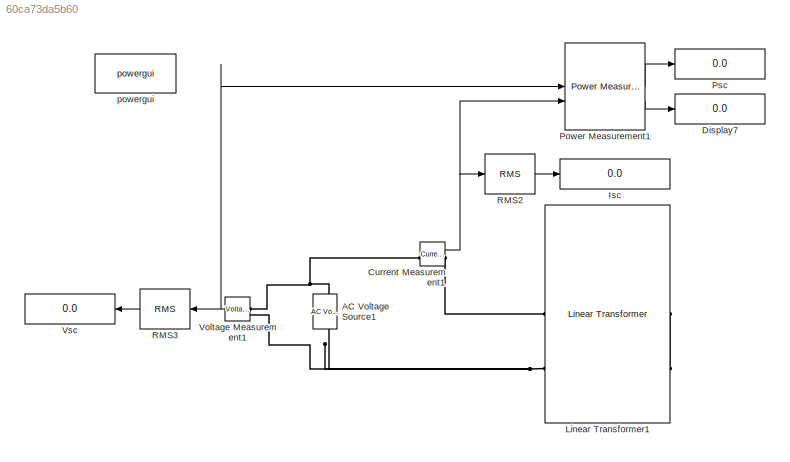
MODEL slx_60ca73da5b60
KIND model
CONFIG AbsTol = auto
CONFIG EnableMultiTasking = off
CONFIG FixedStep = auto
CONFIG MaxStep = auto
CONFIG MinStep = auto
CONFIG RelTol = 1e-3
CONFIG SampleTimeConstraint = Unconstrained
CONFIG SolverName = VariableStepAuto
CONFIG StartTime = 0.0
CONFIG StopTime = 1
BLOCK [Reference] AC Voltage Source1  REF=spsACVoltageSourceLib/AC Voltage Source
  LibrarySourceBlock = sps_lib/Sources/AC Voltage Source
  SourceBlock = spsACVoltageSourceLib/AC Voltage Source
  SourceType = AC Voltage Source
BLOCK [Reference] Current Measurement1  REF=spsCurrentMeasurementLib/Current Measurement
  LibrarySourceBlock = sps_lib/Sensors and Measurements/Current Measurement
  SourceBlock = spsCurrentMeasurementLib/Current Measurement
  SourceType = Current Measurement
  UserDataPersistent = on
BLOCK [Display] Display7
  Decimation = 1
BLOCK [Display] Isc
  Decimation = 3
  Format = decimal (Stored Integer)
BLOCK [Reference] Linear Transformer1  REF=spsLinearTransformerLib/Linear Transformer
  LibrarySourceBlock = sps_lib/Power Grid Elements/Linear Transformer
  SourceBlock = spsLinearTransformerLib/Linear Transformer
  SourceType = Linear Transformer
BLOCK [Reference] Power Measurement1  REF=eePowerMeasurement/Power
Measurement
  LibrarySourceBlock = ee_sl_lib/Measurements/Power\nMeasurement
  SourceBlock = eePowerMeasurement/Power\nMeasurement
  SourceType = Power Measurement
BLOCK [Display] Psc
  Decimation = 1
BLOCK [Reference] RMS2  REF=spsRMSLib/RMS
  LibrarySourceBlock = sps_lib/Sensors and Measurements/RMS
  SourceBlock = spsRMSLib/RMS
  SourceType = RMS
BLOCK [Reference] RMS3  REF=spsRMSLib/RMS
  LibrarySourceBlock = sps_lib/Sensors and Measurements/RMS
  SourceBlock = spsRMSLib/RMS
  SourceType = RMS
BLOCK [Reference] Voltage Measurement1  REF=spsVoltageMeasurementLib/Voltage Measurement
  LibrarySourceBlock = sps_lib/Sensors and Measurements/Voltage Measurement
  SourceBlock = spsVoltageMeasurementLib/Voltage Measurement
  SourceType = Voltage Measurement
  UserDataPersistent = on
BLOCK [Display] Vsc
  Decimation = 1
BLOCK [Reference] powergui  REF=spspowerguiLib/powergui
  LibrarySourceBlock = sps_lib/powergui
  Priority = 1
  SourceBlock = spspowerguiLib/powergui
  SourceType = PSB option menu block
NET Current Measurement1:1 -> Power Measurement1:2, RMS2:1
LINE Power Measurement1:1 -> Psc:1
LINE Power Measurement1:2 -> Display7:1
LINE RMS2:1 -> Isc:1
LINE RMS3:1 -> Vsc:1
NET Voltage Measurement1:1 -> Power Measurement1:1, RMS3:1
PNET net1: AC Voltage Source1:LConn1 -- Linear Transformer1:LConn2 -- Voltage Measurement1:LConn2
PNET net2: AC Voltage Source1:RConn1 -- Current Measurement1:LConn1 -- Voltage Measurement1:LConn1
PLINE Current Measurement1:RConn1 -- Linear Transformer1:LConn1
PLINE Linear Transformer1:RConn1 -- Linear Transformer1:RConn2
note: NET lines group one-source signal fan-out (src -> all destinations, sorted); 1:1 wires keep LINE; PNET lines group multi-terminal physical nets as a canonical sorted terminal list (undirected conserving connections); 2-terminal nets keep the pairwise PLINE form
